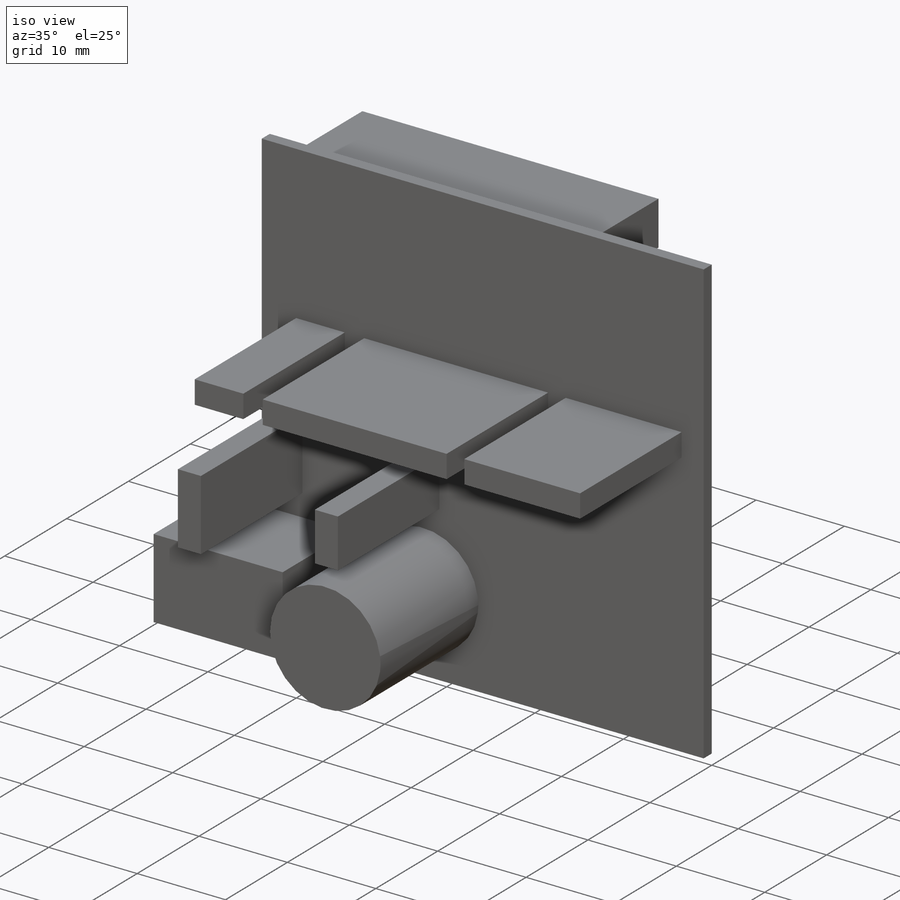
[diagram: iso view]
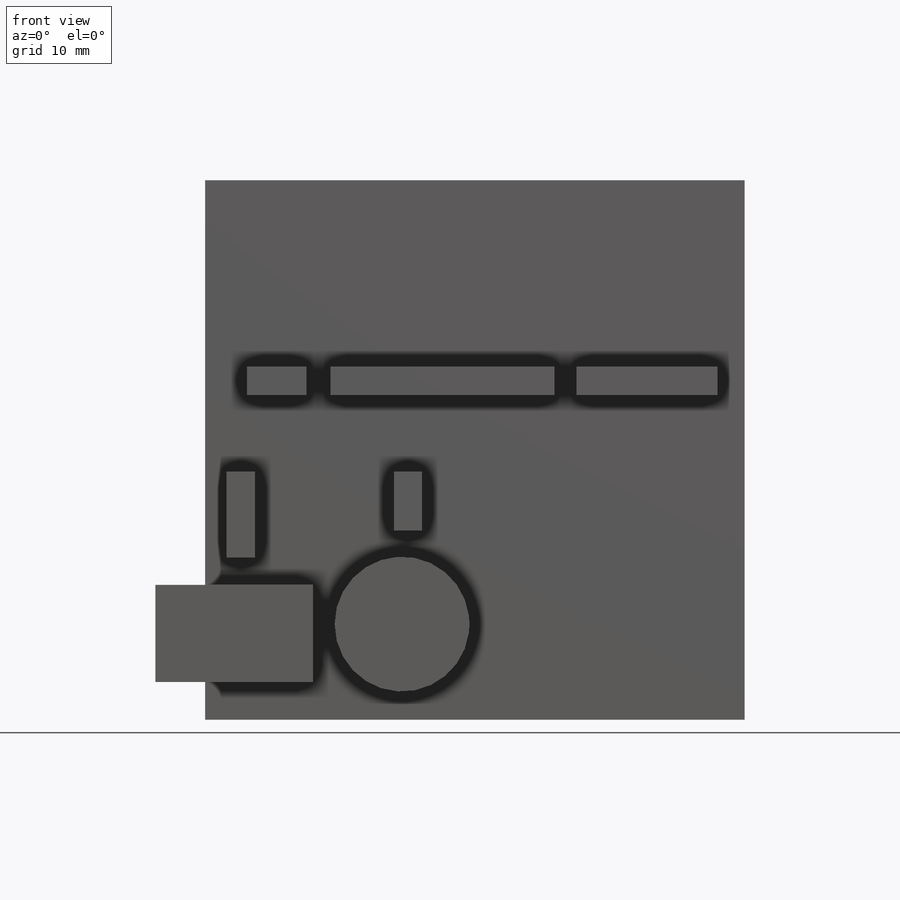
[diagram: front view]
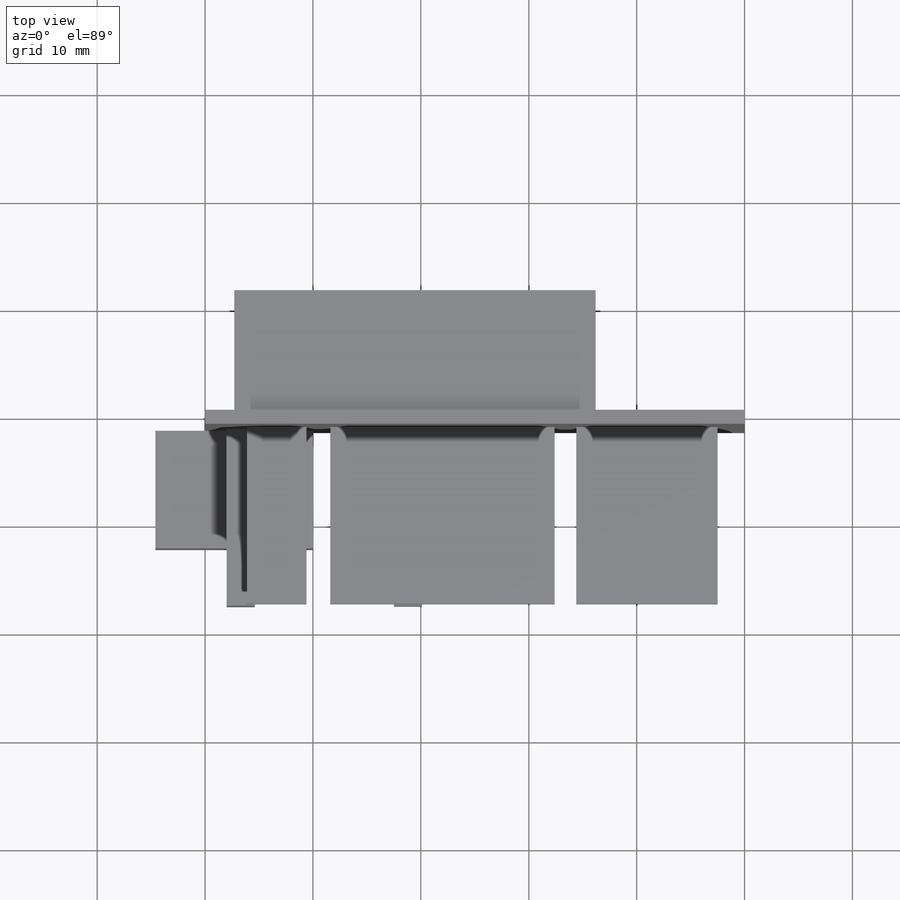
[diagram: top view]
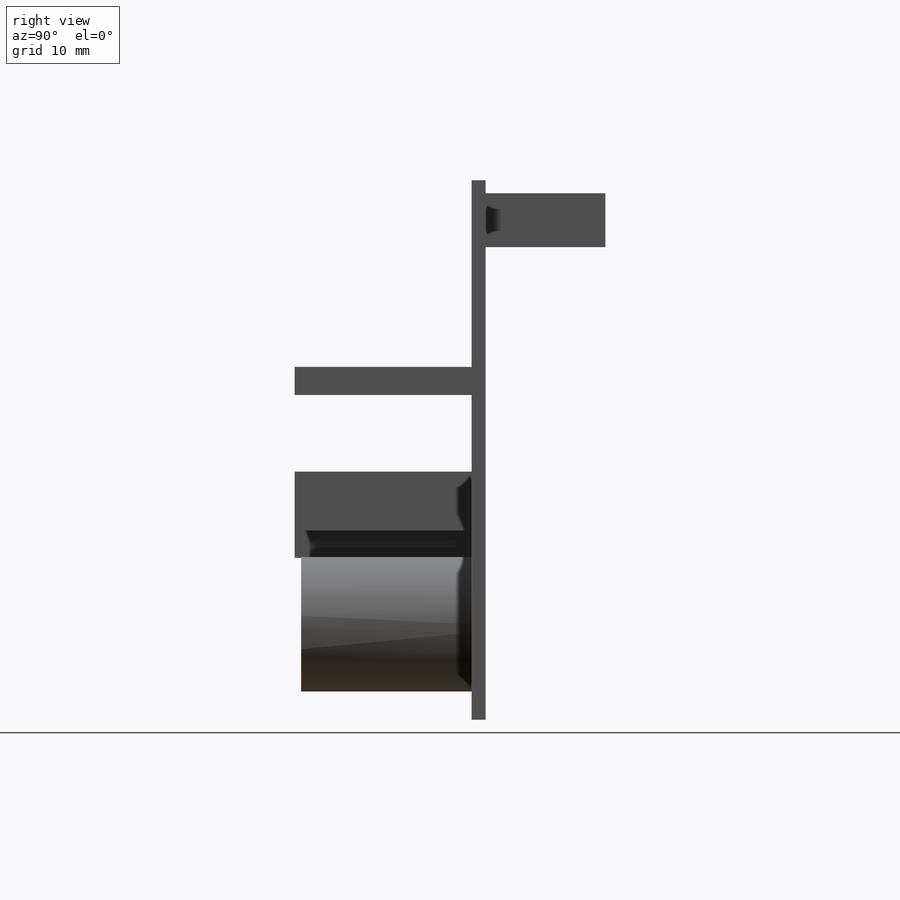
[diagram: right view]
SOLIDWORKS PART (.sldprt)
format: sldprt  version: not decoded by parser v0  size: 208,896 bytes
history: native  units: mm
features: sketch x5, extrude x5, plane x3, material x1 (+13 scaffold rows collapsed)
feature tree (27):
  scaffold x13  (default folders/planes/origin — collapsed)
  material  "Material <sin especificar>"
  plane  "Alzado"
  plane  "Planta"
  plane  "Vista lateral"
  sketch  "Croquis1"  dims[D1=50.0mm D2=50.0mm]
  extrude  "Saliente-Extruir1"  Depth=1.3mm
  sketch  "Croquis2"  dims[D1=33.5mm D2=5.0mm D3=1.2mm D4=2.7mm]
  extrude  "Saliente-Extruir2"  Depth=11.1mm
  sketch  "Croquis3"  dims[D1=14.6mm D2=9.0mm D3=4.6mm D4=3.5mm]
  extrude  "Saliente-Extruir3"  Depth=10.9mm
  sketch  "Croquis4"  dims[D1=12.5mm D2=2.6mm D3=2.0mm]
  extrude  "Saliente-Extruir4"  Depth=15.8mm
  sketch  "Croquis5"  dims[D1=17.3mm D2=2.5mm D3=2.6mm D4=13.1mm D5=2.0mm D6=20.8mm D7=2.2mm D8=5.5mm D9=8.0mm D10=5.5mm D11=27.0mm D12=2.0mm D13=12.9mm]
  extrude  "Saliente-Extruir5"  Depth=16.4mm
decode coverage: 10 of 10 modeling features carry decoded parameters
note: suppression state not decoded; provenance and decode notes live in map.json
